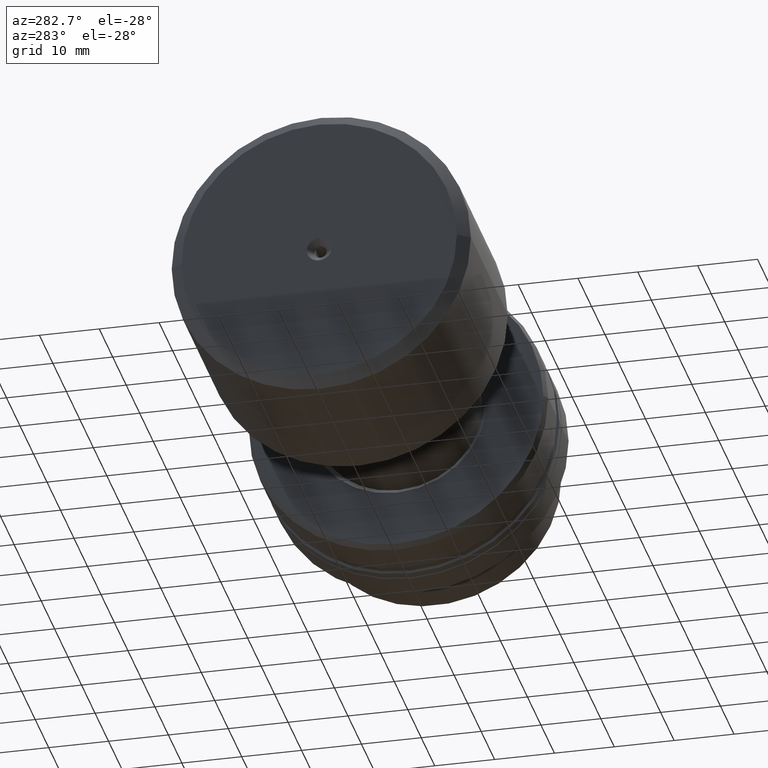
[diagram: clean part render]
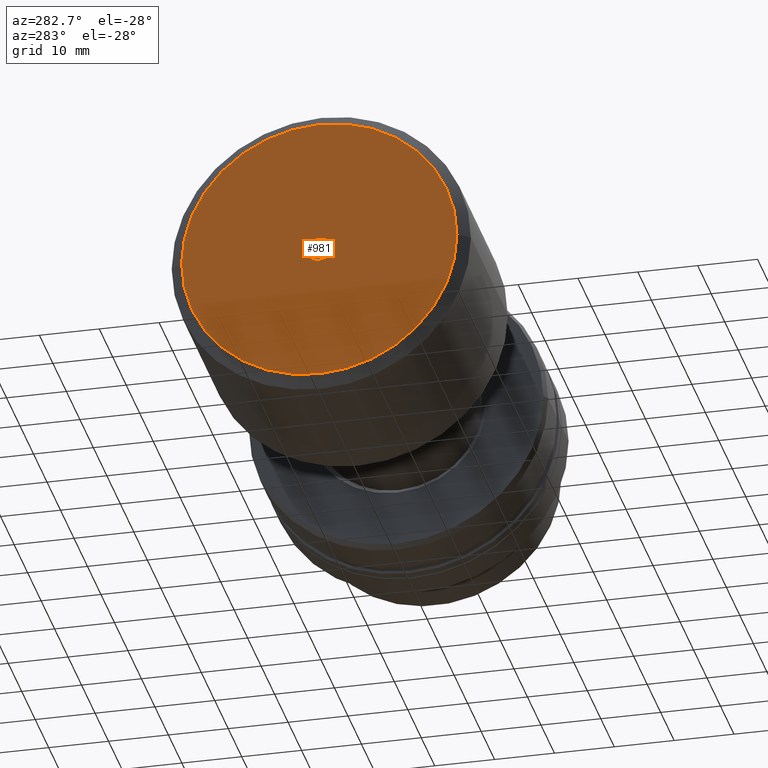
[diagram: same view with one face highlighted and labeled with its STEP entity id]
A machine part, auxiliary view. The second image highlights one B-rep face of the part: STEP entity #981.
In plain terms, the highlighted planar face has unit normal (-1, -0, 0).
Its self-contained STEP definition (entity closure, byte-faithful):
#96 = PLANE ( 'NONE',  #1753 ) ;
#114 = ORIENTED_EDGE ( 'NONE', *, *, #1521, .T. ) ;
#115 = AXIS2_PLACEMENT_3D ( 'NONE', #2125, #1948, #1026 ) ;
#226 = CIRCLE ( 'NONE', #115, 2.075000000000007283 ) ;
#265 = AXIS2_PLACEMENT_3D ( 'NONE', #2080, #821, #479 ) ;
#350 = VERTEX_POINT ( 'NONE', #510 ) ;
#371 = VERTEX_POINT ( 'NONE', #1770 ) ;
#395 = EDGE_CURVE ( 'NONE', #434, #371, #982, .T. ) ;
#434 = VERTEX_POINT ( 'NONE', #1250 ) ;
#448 = ORIENTED_EDGE ( 'NONE', *, *, #592, .T. ) ;
#469 = DIRECTION ( 'NONE',  ( -1.000000000000000000, -1.069542322069065801E-17, -0.000000000000000000 ) ) ;
#479 = DIRECTION ( 'NONE',  ( 1.069542322069061487E-17, -1.000000000000000000, 0.000000000000000000 ) ) ;
#510 = CARTESIAN_POINT ( 'NONE',  ( 1.285346451981513596E-15, 2.541142108230766946E-16, -2.075000000000007283 ) ) ;
#546 = DIRECTION ( 'NONE',  ( 1.069542322069065339E-17, -1.000000000000000000, 0.000000000000000000 ) ) ;
#569 = AXIS2_PLACEMENT_3D ( 'NONE', #784, #1481, #546 ) ;
#584 = DIRECTION ( 'NONE',  ( 1.069542322069065801E-17, -1.000000000000000000, 0.000000000000000000 ) ) ;
#592 = EDGE_CURVE ( 'NONE', #1992, #350, #226, .T. ) ;
#784 = CARTESIAN_POINT ( 'NONE',  ( 2.570692903963027191E-15, 2.749464857831086545E-32, 0.000000000000000000 ) ) ;
#816 = DIRECTION ( 'NONE',  ( -1.000000000000000000, -1.069542322069065801E-17, 0.000000000000000000 ) ) ;
#821 = DIRECTION ( 'NONE',  ( 1.000000000000000000, 1.069542322069065801E-17, 0.000000000000000000 ) ) ;
#848 = CARTESIAN_POINT ( 'NONE',  ( 1.285346451981513596E-15, 0.000000000000000000, 2.075000000000007283 ) ) ;
#981 = ADVANCED_FACE ( 'NONE', ( #1173, #1712 ), #96, .T. ) ;
#982 = CIRCLE ( 'NONE', #569, 23.00000000000000000 ) ;
#1026 = DIRECTION ( 'NONE',  ( 1.069542322069061487E-17, -1.000000000000000000, 0.000000000000000000 ) ) ;
#1173 = FACE_BOUND ( 'NONE', #1796, .T. ) ;
#1250 = CARTESIAN_POINT ( 'NONE',  ( 2.816687638038912352E-15, -23.00000000000000000, 2.939152317953647894E-15 ) ) ;
#1431 = AXIS2_PLACEMENT_3D ( 'NONE', #2060, #469, #1522 ) ;
#1481 = DIRECTION ( 'NONE',  ( -1.000000000000000000, -1.069542322069065801E-17, -0.000000000000000000 ) ) ;
#1521 = EDGE_CURVE ( 'NONE', #350, #1992, #2169, .T. ) ;
#1522 = DIRECTION ( 'NONE',  ( 1.069542322069065339E-17, -1.000000000000000000, 0.000000000000000000 ) ) ;
#1545 = CARTESIAN_POINT ( 'NONE',  ( 1.285346451981513596E-15, 1.374732428915543273E-32, 0.000000000000000000 ) ) ;
#1712 = FACE_OUTER_BOUND ( 'NONE', #1855, .T. ) ;
#1753 = AXIS2_PLACEMENT_3D ( 'NONE', #1545, #816, #584 ) ;
#1770 = CARTESIAN_POINT ( 'NONE',  ( 2.324698169887142426E-15, 23.00000000000000000, 0.000000000000000000 ) ) ;
#1796 = EDGE_LOOP ( 'NONE', ( #448, #114 ) ) ;
#1855 = EDGE_LOOP ( 'NONE', ( #1927, #1879 ) ) ;
#1879 = ORIENTED_EDGE ( 'NONE', *, *, #395, .T. ) ;
#1927 = ORIENTED_EDGE ( 'NONE', *, *, #1960, .T. ) ;
#1948 = DIRECTION ( 'NONE',  ( 1.000000000000000000, 1.069542322069065801E-17, 0.000000000000000000 ) ) ;
#1960 = EDGE_CURVE ( 'NONE', #371, #434, #2091, .T. ) ;
#1992 = VERTEX_POINT ( 'NONE', #848 ) ;
#2060 = CARTESIAN_POINT ( 'NONE',  ( 2.570692903963027191E-15, 2.749464857831086545E-32, 0.000000000000000000 ) ) ;
#2080 = CARTESIAN_POINT ( 'NONE',  ( 1.285346451981513596E-15, 0.000000000000000000, 0.000000000000000000 ) ) ;
#2091 = CIRCLE ( 'NONE', #1431, 23.00000000000000000 ) ;
#2125 = CARTESIAN_POINT ( 'NONE',  ( 1.285346451981513596E-15, 0.000000000000000000, 0.000000000000000000 ) ) ;
#2169 = CIRCLE ( 'NONE', #265, 2.075000000000007283 ) ;